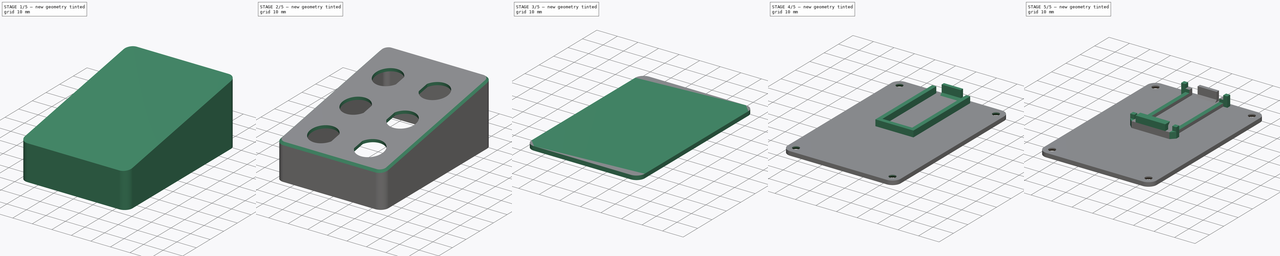
[diagram: build sequence overview — one tinted view per stage of 5, left to right]
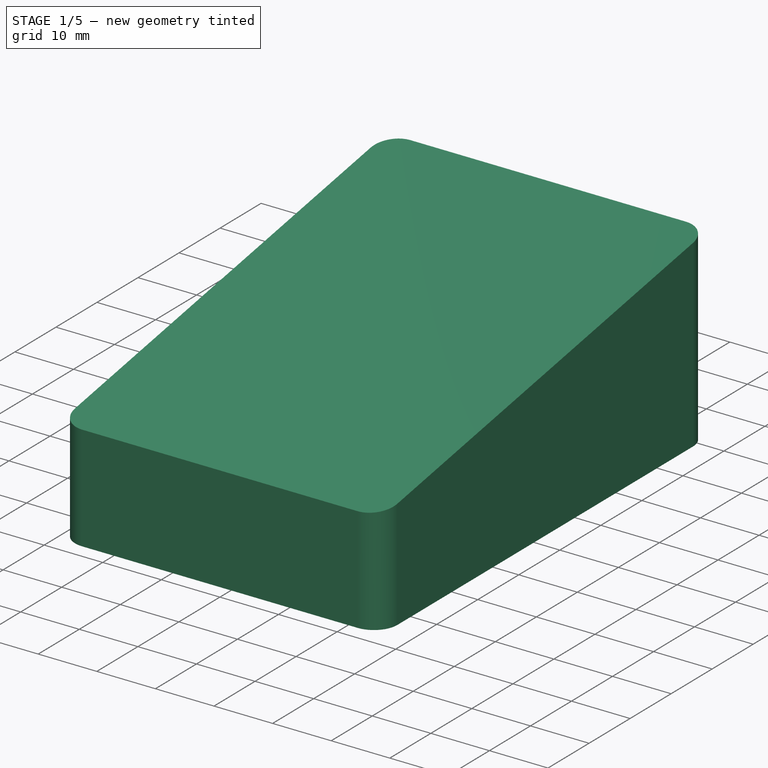
[diagram: stage 1 of 5 — iso view after this stage's code; geometry added in this stage tinted green]
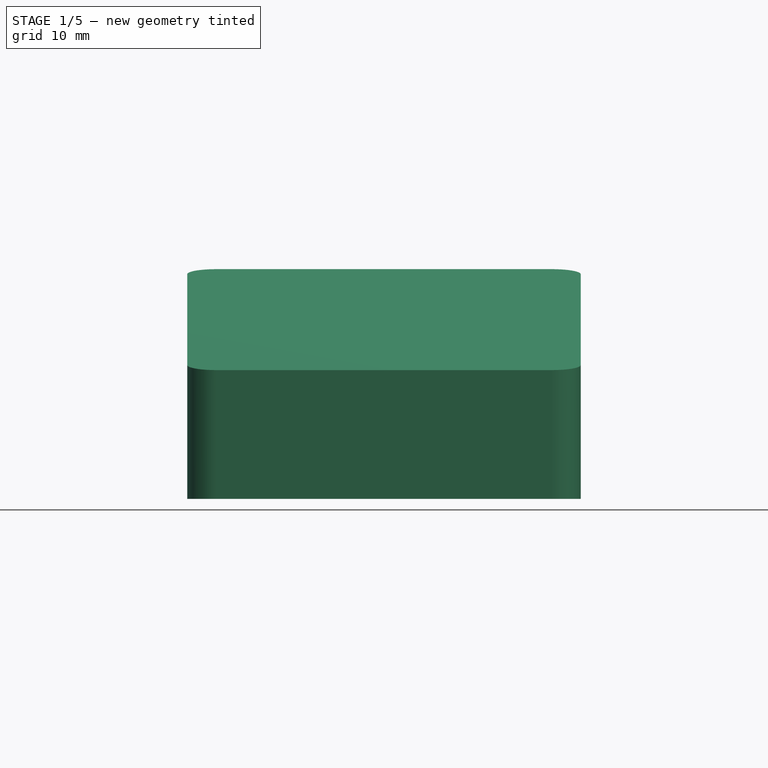
[diagram: stage 1 of 5 — front view after this stage's code; geometry added in this stage tinted green]
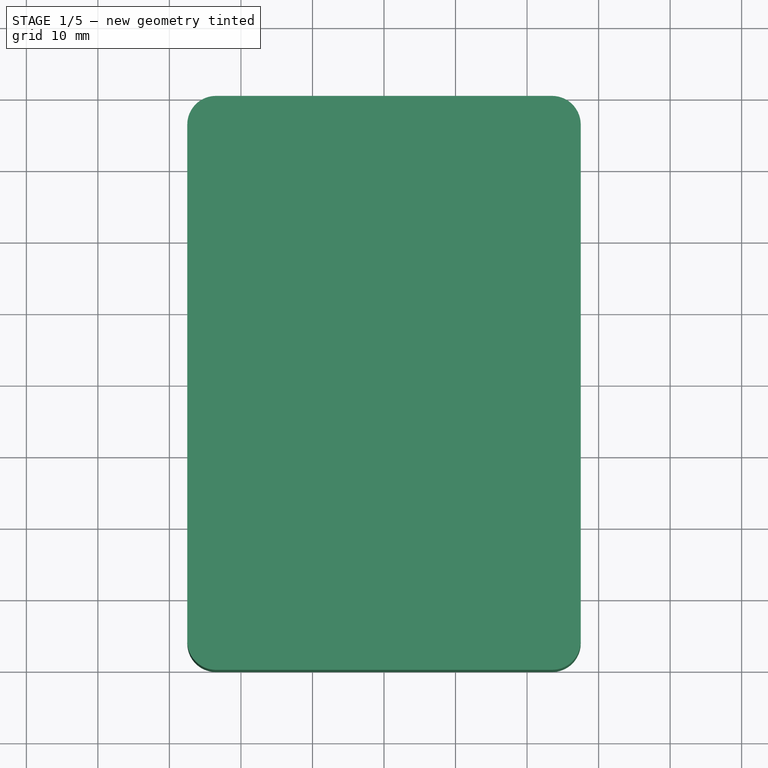
[diagram: stage 1 of 5 — top view after this stage's code; geometry added in this stage tinted green]
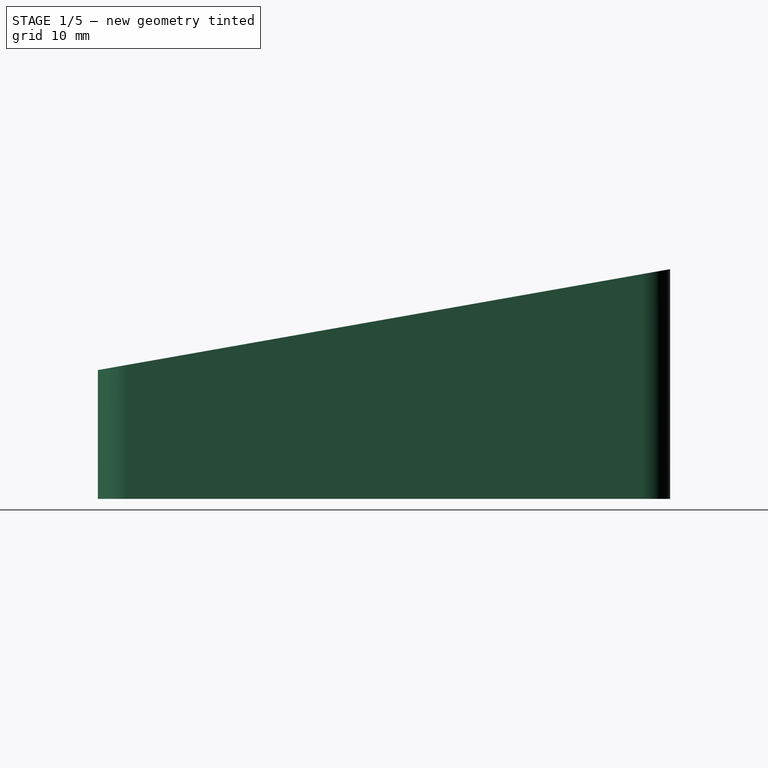
[diagram: stage 1 of 5 — right view after this stage's code; geometry added in this stage tinted green]
FCSTD DOCUMENT  (FreeCAD 1.0R39285 (Git))
Label: KEYPAD_Tucnak_Pro_micro_USB_C
License: All rights reserved
LicenseURL: http://en.wikipedia.org/wiki/All_rights_reserved
objects: Sketcher::SketchObject×17, PartDesign::Pad×11, PartDesign::Pocket×6, PartDesign::Chamfer×5, PartDesign::Fillet×2, PartDesign::Body×2, PartDesign::SubShapeBinder×1, PartDesign::Draft×1, PartDesign::Thickness×1, PartDesign::Mirrored×1, PartDesign::LinearPattern×1, PartDesign::MultiTransform×1
note: 121 computed .brp shape members not serialized (recipe doc carries the construction recipe); baked Part::Feature solids carry a one-line shape summary decoded from their .brp

FEATURE [Sketcher::SketchObject] Sketch
  ArcFitTolerance = 1e-06
  AttachmentSupport = -> [XY_Plane]
  FullyConstrained = true
  MakeInternals = false
  MapMode = 5
  sketch-geometry (5):
    g0: LineSegment StartX=-27.5 StartY=-40 StartZ=0 EndX=27.5 EndY=-40 EndZ=0
    g1: LineSegment StartX=27.5 StartY=-40 StartZ=0 EndX=27.5 EndY=40 EndZ=0
    g2: LineSegment StartX=-27.5 StartY=40 StartZ=0 EndX=-27.5 EndY=-40 EndZ=0
    g3: GeomPoint [constr] X=0 Y=0 Z=0
    g4: LineSegment StartX=-27.5 StartY=40 StartZ=0 EndX=27.5 EndY=40 EndZ=0
  constraints (12):
    c: Coincident(g0,g1)
    c: Coincident(g2,g0)
    c: Horizontal(g0)
    c: Vertical(g1)
    c: Vertical(g2)
    c: Symmetric(g1,g0,g3)
    c: Distance(g1,g2) = 55
    c: Distance(g0,g2) = 80
    c: Coincident(g3,g-1)
    c: Horizontal(g4)
    c: Coincident(g4,g1)
    c: Coincident(g4,g2)
FEATURE [PartDesign::Pad] Pad  label="80x55mm - 6 tlacitek"
  Direction = (0,0,1)
  Length = 18
  Length2 = 10
  Profile = -> Sketch
  ReferenceAxis = -> Sketch [N_Axis]
  Suppressed = false
  Type = 0
FEATURE [Sketcher::SketchObject] Sketch012
  ArcFitTolerance = 1e-06
  AttachmentSupport = -> [YZ_Plane001]
  FullyConstrained = true
  MakeInternals = false
  MapMode = 5
  Placement = pos=(0,0,0) rot=(0.57735,0.57735,0.57735;2.0944rad)
  sketch-geometry (4):
    g0: LineSegment StartX=2.9 StartY=3 StartZ=0 EndX=4.9 EndY=3 EndZ=0
    g1: LineSegment StartX=4.9 StartY=3 StartZ=0 EndX=6.0547 EndY=5 EndZ=0
    g2: LineSegment StartX=6.0547 StartY=5 StartZ=0 EndX=2.9 EndY=5 EndZ=0
    g3: LineSegment StartX=2.9 StartY=5 StartZ=0 EndX=2.9 EndY=3 EndZ=0
  constraints (10):
    c: Coincident(g0,g-3)
    c: Coincident(g0,g-4)
    c: Coincident(g1,g0)
    c: Coincident(g2,g1)
    c: Coincident(g3,g2)
    c: Coincident(g3,g0)
    c: Vertical(g3)
    c: Horizontal(g2)
    c: Angle(g2,g1) = 1.0472
    c: DistanceY(g3,g3) = 2
FEATURE [PartDesign::Draft] Draft  label="Draft - 10 st."
  Angle = 10
  Base = -> Pad [Face6]
  BaseFeature = -> Pad
  Refine = true
  SupportTransform = false
  Suppressed = false
FEATURE [PartDesign::Thickness] Thickness
  Base = -> Draft [Face5]
  BaseFeature = -> Draft
  Intersection = false
  Join = 0
  Mode = 0
  Refine = true
  Reversed = true
  SupportTransform = false
  Suppressed = false
  Value = 1.6
FEATURE [PartDesign::Fillet] Fillet
  Base = -> Thickness [Edge1,Edge2,Edge8,Edge5]
  BaseFeature = -> Thickness
  Radius = 4
  Refine = true
  SupportTransform = false
  Suppressed = false
  UseAllEdges = false
FEATURE [PartDesign::Fillet] Fillet001
  Base = -> Fillet [Edge35,Edge32,Edge29,Edge31]
  BaseFeature = -> Fillet
  Radius = 2.4
  Refine = true
  SupportTransform = false
  Suppressed = false
  UseAllEdges = false
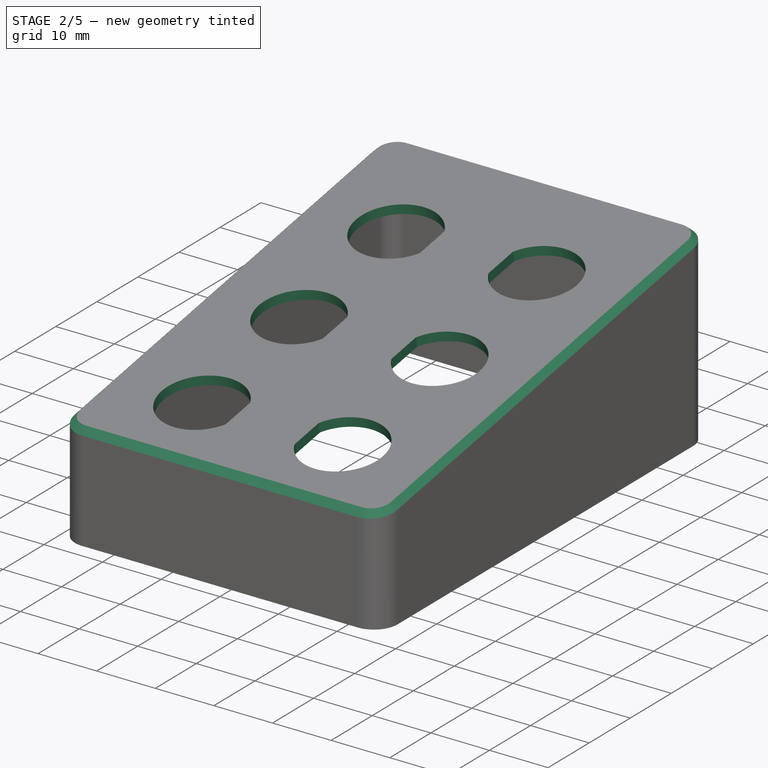
[diagram: stage 2 of 5 — iso view after this stage's code; geometry added in this stage tinted green]
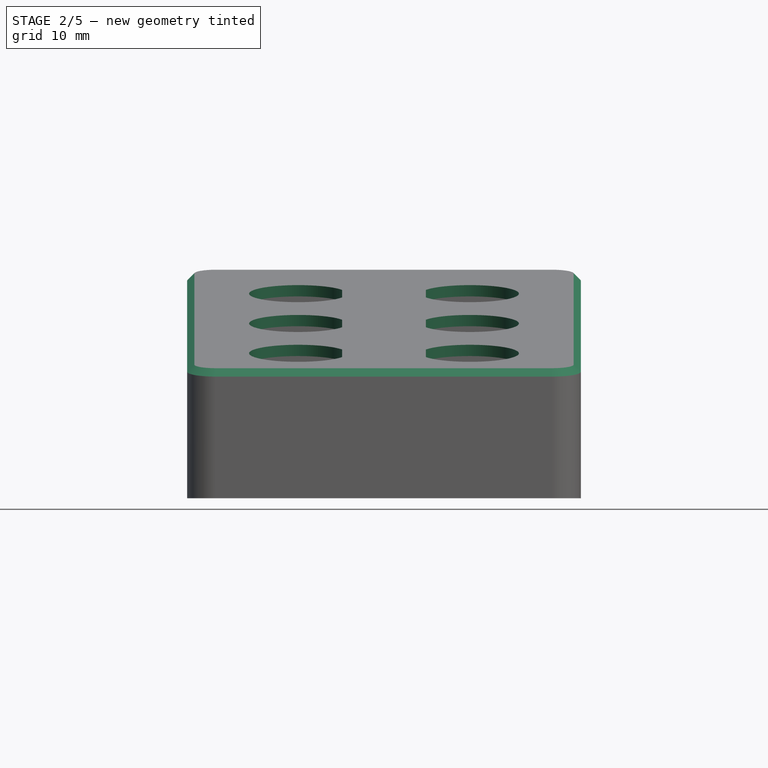
[diagram: stage 2 of 5 — front view after this stage's code; geometry added in this stage tinted green]
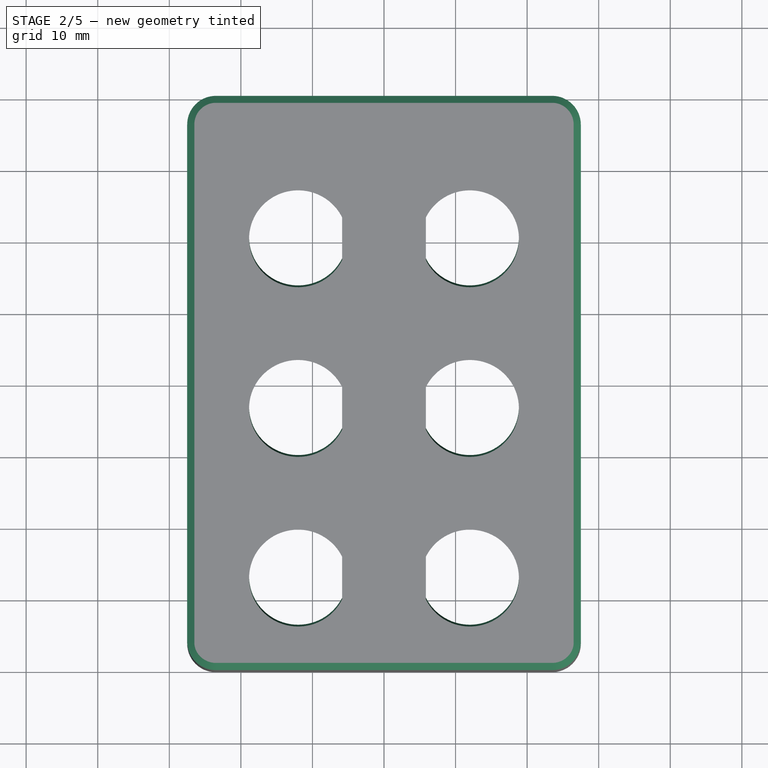
[diagram: stage 2 of 5 — top view after this stage's code; geometry added in this stage tinted green]
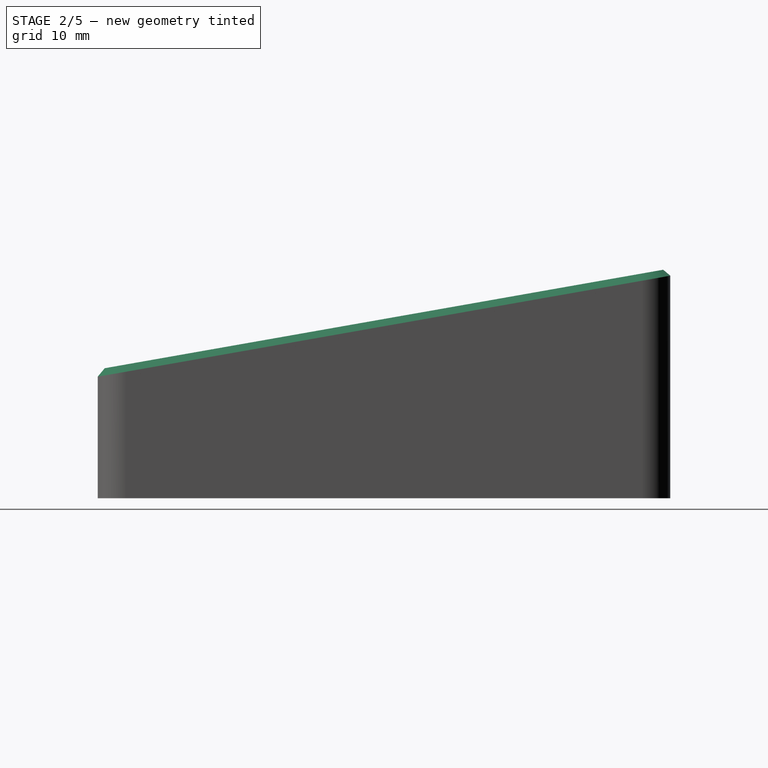
[diagram: stage 2 of 5 — right view after this stage's code; geometry added in this stage tinted green]
FEATURE [PartDesign::Chamfer] Chamfer
  Angle = 45
  Base = -> Fillet001 [Edge43,Edge41]
  BaseFeature = -> Fillet001
  ChamferType = 0
  FlipDirection = false
  Refine = true
  Size = 1
  Size2 = 1
  SupportTransform = false
  Suppressed = false
  UseAllEdges = false
FEATURE [PartDesign::Chamfer] Chamfer005
  Angle = 45
  Base = -> Chamfer [Edge48,Edge46]
  BaseFeature = -> Chamfer
  ChamferType = 0
  FlipDirection = false
  Refine = true
  Size = 1.5
  Size2 = 1
  SupportTransform = false
  Suppressed = false
  UseAllEdges = false
FEATURE [Sketcher::SketchObject] Sketch018
  ArcFitTolerance = 1e-06
  AttachmentSupport = -> [Chamfer005]
  ExternalGeometry = -> [Chamfer005]
  FullyConstrained = true
  MakeInternals = false
  MapMode = 5
  Placement = pos=(0,-4.28433,24.2976) rot=(1,0,0;0.174533rad)
  sketch-geometry (3):
    g0: ArcOfCircle CenterX=12 CenterY=-23.2666 CenterZ=0 NormalX=0 NormalY=0 NormalZ=1 AngleXU=0 Radius=6.85 StartAngle=3.59762 EndAngle=8.96875
    g1: LineSegment StartX=5.85 StartY=-20.25 StartZ=0 EndX=5.85 EndY=-26.2833 EndZ=0
    g2: GeomPoint [constr] X=18.85 Y=-23.2666 Z=0
  constraints (9):
    c: Vertical(g1)
    c: PointOnObject(g2,g0)
    c: Horizontal(g2,g0)
    c: Diameter(g0) = 13.7
    c: Coincident(g0,g1)
    c: Coincident(g1,g0)
    c: Distance(g2,g1) = 13
    c: Distance(g0,g-2) = 12
    c: Distance(g0,g-3) = 12
FEATURE [PartDesign::Pocket] Pocket
  BaseFeature = -> Chamfer005
  Direction = (0,0.173648,-0.984808)
  Length = 5
  Length2 = 5
  Profile = -> Sketch018
  ReferenceAxis = -> Sketch018 [N_Axis]
  Refine = true
  Suppressed = false
  Type = 0
FEATURE [PartDesign::Mirrored] Mirrored
  MirrorPlane = -> Sketch018 [V_Axis]
  Refine = true
  Suppressed = false
  TransformMode = 0
FEATURE [PartDesign::LinearPattern] LinearPattern
  Direction = -> Pocket [Edge56]
  Length = 48
  Mode = 1
  Occurrences = 3
  Offset = 24
  Refine = true
  Suppressed = false
  TransformMode = 0
FEATURE [PartDesign::MultiTransform] MultiTransform
  BaseFeature = -> Pocket
  Originals = -> [Pocket]
  Refine = true
  Suppressed = false
  TransformMode = 0
  Transformations = -> [Mirrored,LinearPattern]
FEATURE [Sketcher::SketchObject] Sketch019
  ArcFitTolerance = 1e-06
  AttachmentSupport = -> [MultiTransform]
  FullyConstrained = true
  MakeInternals = false
  MapMode = 5
  Placement = pos=(0,40,0) rot=(0,0.707107,0.707107;3.14159rad)
  sketch-geometry (4):
    g0: LineSegment StartX=-4.75 StartY=0 StartZ=0 EndX=4.75 EndY=0 EndZ=0
    g1: LineSegment StartX=4.75 StartY=0 StartZ=0 EndX=4.75 EndY=8 EndZ=0
    g2: LineSegment StartX=4.75 StartY=8 StartZ=0 EndX=-4.75 EndY=8 EndZ=0
    g3: LineSegment StartX=-4.75 StartY=8 StartZ=0 EndX=-4.75 EndY=0 EndZ=0
  constraints (11):
    c: Coincident(g0,g1)
    c: Coincident(g1,g2)
    c: Coincident(g2,g3)
    c: Coincident(g3,g0)
    c: Horizontal(g0)
    c: Vertical(g1)
    c: Vertical(g3)
    c: PointOnObject(g0,g-1)
    c: Symmetric(g2,g1,g-2)
    c: DistanceX(g2,g2) = 9.5
    c: DistanceY(g1,g1) = 8
FEATURE [PartDesign::Pocket] Pocket011
  BaseFeature = -> MultiTransform
  Direction = (0,-1,2e-16)
  Length = 5
  Length2 = 5
  Profile = -> Sketch019
  ReferenceAxis = -> Sketch019 [N_Axis]
  Refine = true
  Suppressed = false
  Type = 0
FEATURE [Sketcher::SketchObject] Sketch020
  ArcFitTolerance = 1e-06
  AttachmentSupport = -> [Pocket011]
  ExternalGeometry = -> [Pocket011]
  FullyConstrained = true
  MakeInternals = false
  MapMode = 5
  Placement = pos=(4.75,0,0) rot=(0.57735,-0.57735,-0.57735;2.0944rad)
  sketch-geometry (3):
    g0: LineSegment StartX=-38.4 StartY=8 StartZ=0 EndX=-35.4 EndY=8 EndZ=0
    g1: LineSegment StartX=-35.4 StartY=8 StartZ=0 EndX=-38.4 EndY=12.2844 EndZ=0
    g2: LineSegment StartX=-38.4 StartY=12.2844 StartZ=0 EndX=-38.4 EndY=8 EndZ=0
  constraints (8):
    c: Coincident(g-3,g0)
    c: Horizontal(g0)
    c: Coincident(g0,g1)
    c: Coincident(g1,g2)
    c: Coincident(g2,g0)
    c: Vertical(g2)
    c: DistanceX(g0,g0) = 3
    c: Angle(g1,g-4) = 0.785398
FEATURE [PartDesign::Pad] Pad008
  BaseFeature = -> Pocket011
  Direction = (-1,0,0)
  Length = 8
  Length2 = 10
  Profile = -> Sketch020
  ReferenceAxis = -> Sketch020 [N_Axis]
  Refine = true
  Suppressed = false
  Type = 3
  UpToFace = -> Pocket011 [Face22]
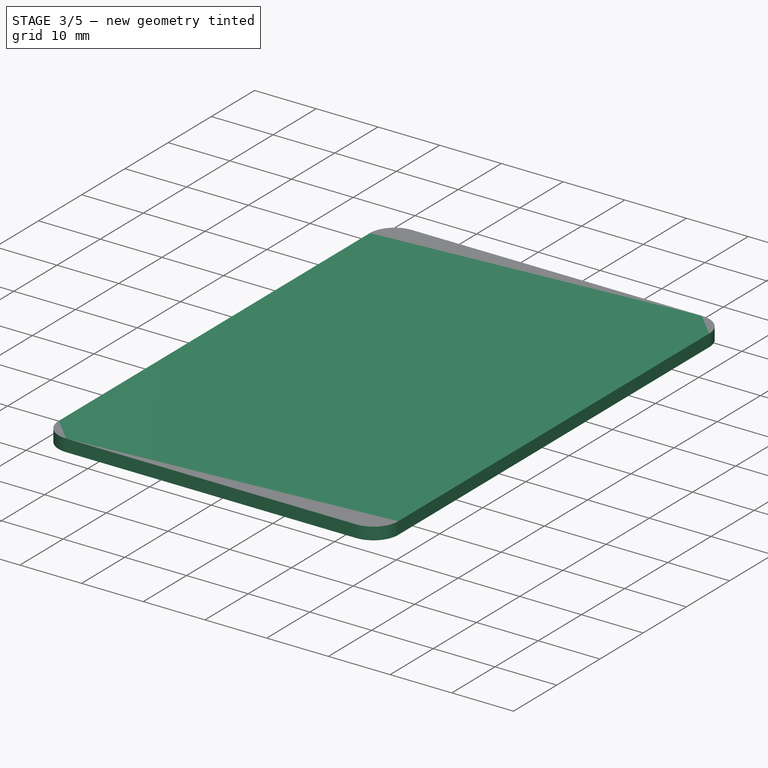
[diagram: stage 3 of 5 — iso view after this stage's code; geometry added in this stage tinted green]
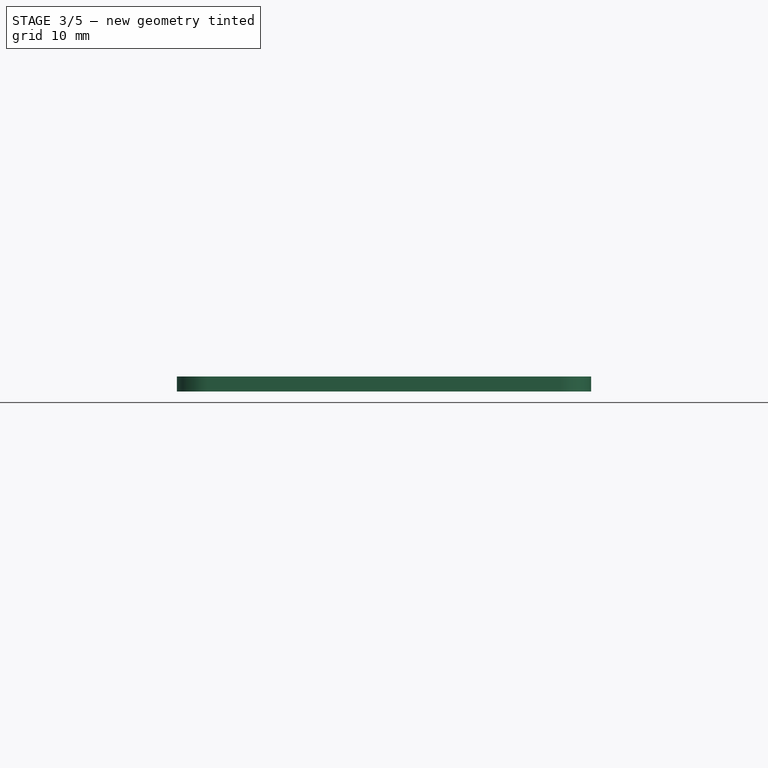
[diagram: stage 3 of 5 — front view after this stage's code; geometry added in this stage tinted green]
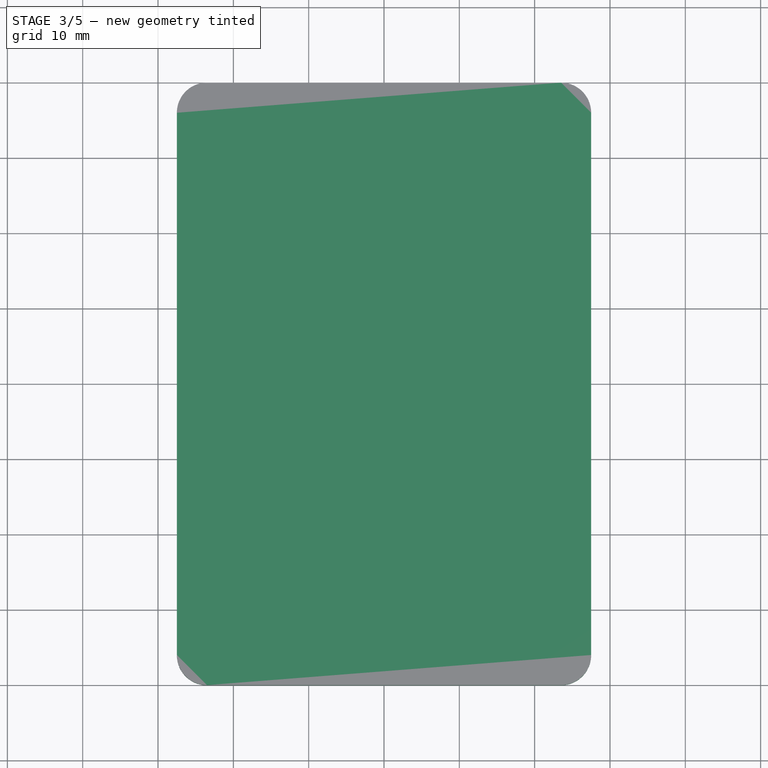
[diagram: stage 3 of 5 — top view after this stage's code; geometry added in this stage tinted green]
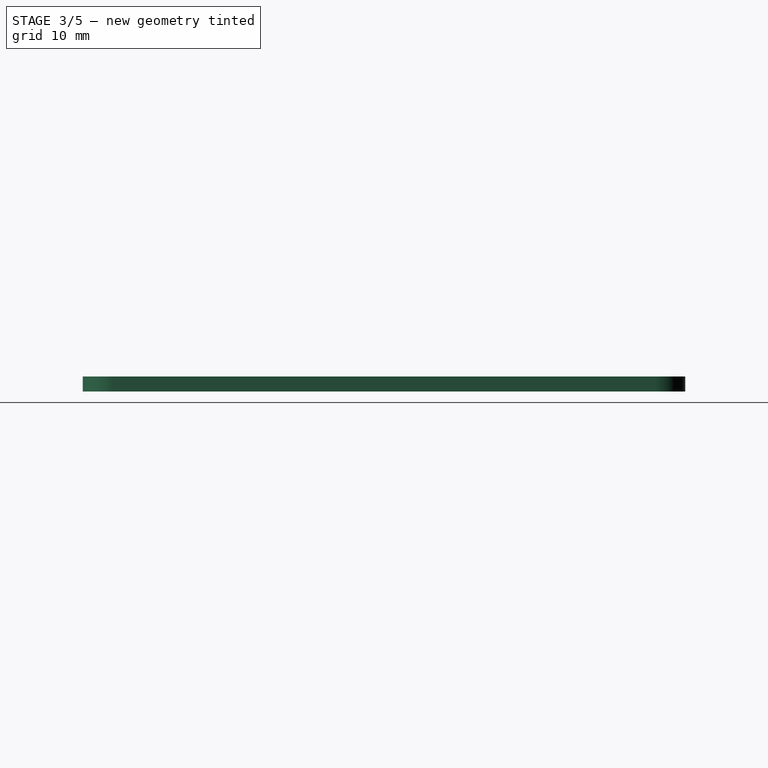
[diagram: stage 3 of 5 — right view after this stage's code; geometry added in this stage tinted green]
FEATURE [PartDesign::SubShapeBinder] Binder
  BindCopyOnChange = 0
  BindMode = 0
  ClaimChildren = false
  Context = -> Body001 [Binder.]
  Fuse = false
  MakeFace = true
  OffsetFill = false
  OffsetIntersection = false
  OffsetJoinType = 0
  OffsetOpenResult = false
  PartialLoad = false
  Relative = true
  Support = -> [Body[Pocket001.,Pocket001.]]
  _Version = 2
FEATURE [Sketcher::SketchObject] Sketch004
  ArcFitTolerance = 1e-06
  AttachmentSupport = -> [Binder]
  ExternalGeometry = -> [Binder]
  FullyConstrained = true
  MakeInternals = false
  MapMode = 5
  Placement = pos=(0,0,0) rot=(1,0,0;3.14159rad)
  sketch-geometry (10):
    g0: LineSegment StartX=-27.5 StartY=36 StartZ=0 EndX=-27.5 EndY=-36 EndZ=0
    g1: LineSegment StartX=-23.5 StartY=-40 StartZ=0 EndX=23.5 EndY=-40 EndZ=0
    g2: LineSegment StartX=27.5 StartY=-36 StartZ=0 EndX=27.5 EndY=36 EndZ=0
    g3: LineSegment StartX=23.5 StartY=40 StartZ=0 EndX=-23.5 EndY=40 EndZ=0
    g4: ArcOfCircle CenterX=-23.5 CenterY=36 CenterZ=0 NormalX=0 NormalY=0 NormalZ=1 AngleXU=0 Radius=4 StartAngle=1.5708 EndAngle=3.14159
    g5: ArcOfCircle CenterX=-23.5 CenterY=-36 CenterZ=0 NormalX=0 NormalY=0 NormalZ=1 AngleXU=0 Radius=4 StartAngle=3.14159 EndAngle=4.71239
    g6: ArcOfCircle CenterX=23.5 CenterY=-36 CenterZ=0 NormalX=0 NormalY=0 NormalZ=1 AngleXU=0 Radius=4 StartAngle=4.71239 EndAngle=6.28319
    g7: ArcOfCircle CenterX=23.5 CenterY=36 CenterZ=0 NormalX=0 NormalY=0 NormalZ=1 AngleXU=0 Radius=4 StartAngle=0 EndAngle=1.5708
    g8: GeomPoint [constr] X=-27.5 Y=40 Z=0
    g9: GeomPoint [constr] X=27.5 Y=-40 Z=0
  constraints (22):
    c: Tangent(g0,g4) = -1.5708
    c: Tangent(g0,g5) = -1.5708
    c: Tangent(g1,g5) = -1.5708
    c: Tangent(g1,g6) = -1.5708
    c: Tangent(g2,g6) = -1.5708
    c: Tangent(g2,g7) = -1.5708
    c: Tangent(g3,g7) = -1.5708
    c: Tangent(g3,g4) = -1.5708
    c: Vertical(g0)
    c: Vertical(g2)
    c: Horizontal(g1)
    c: Horizontal(g3)
    c: Equal(g4,g5)
    c: Equal(g5,g6)
    c: Equal(g6,g7)
    c: PointOnObject(g8,g0)
    c: PointOnObject(g8,g3)
    c: PointOnObject(g9,g1)
    c: PointOnObject(g9,g2)
    c: Equal(g4,g-3)
    c: Coincident(g4,g-3)
    c: Coincident(g6,g-4)
FEATURE [PartDesign::Pad] Pad002
  Direction = (0,0,-1)
  Length = 2
  Length2 = 10
  Profile = -> Sketch004
  ReferenceAxis = -> Sketch004 [N_Axis]
  Suppressed = false
  Type = 0
FEATURE [Sketcher::SketchObject] Sketch021
  ArcFitTolerance = 1e-06
  AttachmentSupport = -> [Pad008]
  ExternalGeometry = -> [Pad008]
  FullyConstrained = true
  MakeInternals = false
  MapMode = 5
  Placement = pos=(0,0,0) rot=(1,0,0;3.14159rad)
  sketch-geometry (24):
    g0: ArcOfCircle CenterX=-23.5 CenterY=36 CenterZ=0 NormalX=0 NormalY=0 NormalZ=1 AngleXU=0 Radius=2.4 StartAngle=1.5708 EndAngle=3.14159
    g1: ArcOfCircle CenterX=-23.5 CenterY=36 CenterZ=0 NormalX=0 NormalY=0 NormalZ=1 AngleXU=0 Radius=4 StartAngle=4.71239 EndAngle=6.28319
    g2: LineSegment StartX=-25.9 StartY=36 StartZ=0 EndX=-25.9 EndY=32 EndZ=0
    g3: LineSegment StartX=-23.5 StartY=38.4 StartZ=0 EndX=-19.5 EndY=38.4 EndZ=0
    g4: LineSegment StartX=-25.9 StartY=32 StartZ=0 EndX=-23.5 EndY=32 EndZ=0
    g5: LineSegment StartX=-19.5 StartY=38.4 StartZ=0 EndX=-19.5 EndY=36 EndZ=0
    g6: ArcOfCircle CenterX=23.5 CenterY=-36 CenterZ=0 NormalX=0 NormalY=0 NormalZ=1 AngleXU=0 Radius=4 StartAngle=1.5708 EndAngle=3.14159
    g7: LineSegment StartX=23.5 StartY=-38.4 StartZ=0 EndX=19.5 EndY=-38.4 EndZ=0
    g8: LineSegment StartX=19.5 StartY=-38.4 StartZ=0 EndX=19.5 EndY=-36 EndZ=0
    g9: LineSegment StartX=25.9 StartY=-36 StartZ=0 EndX=25.9 EndY=-32 EndZ=0
    g10: LineSegment StartX=25.9 StartY=-32 StartZ=0 EndX=23.5 EndY=-32 EndZ=0
    g11: ArcOfCircle CenterX=23.5 CenterY=-36 CenterZ=0 NormalX=0 NormalY=0 NormalZ=1 AngleXU=0 Radius=2.4 StartAngle=4.71239 EndAngle=6.28319
    g12: ArcOfCircle CenterX=-23.5 CenterY=-36 CenterZ=0 NormalX=0 NormalY=0 NormalZ=1 AngleXU=0 Radius=2.4 StartAngle=3.14159 EndAngle=4.71239
    g13: ArcOfCircle CenterX=-23.5 CenterY=-36 CenterZ=0 NormalX=0 NormalY=0 NormalZ=1 AngleXU=0 Radius=4 StartAngle=8e-16 EndAngle=1.5708
    g14: LineSegment StartX=-25.9 StartY=-36 StartZ=0 EndX=-25.9 EndY=-32 EndZ=0
    g15: LineSegment StartX=-25.9 StartY=-32 StartZ=0 EndX=-23.5 EndY=-32 EndZ=0
    g16: LineSegment StartX=-23.5 StartY=-38.4 StartZ=0 EndX=-19.5 EndY=-38.4 EndZ=0
    g17: LineSegment StartX=-19.5 StartY=-38.4 StartZ=0 EndX=-19.5 EndY=-36 EndZ=0
    g18: ArcOfCircle CenterX=23.5 CenterY=36 CenterZ=0 NormalX=0 NormalY=0 NormalZ=1 AngleXU=0 Radius=2.4 StartAngle=1.5e-15 EndAngle=1.5708
    g19: LineSegment StartX=23.5 StartY=38.4 StartZ=0 EndX=19.5 EndY=38.4 EndZ=0
    g20: LineSegment StartX=19.5 StartY=38.4 StartZ=0 EndX=19.5 EndY=36 EndZ=0
    g21: LineSegment StartX=25.9 StartY=36 StartZ=0 EndX=25.9 EndY=32 EndZ=0
    g22: LineSegment StartX=25.9 StartY=32 StartZ=0 EndX=23.5 EndY=32 EndZ=0
    g23: ArcOfCircle CenterX=23.5 CenterY=36 CenterZ=0 NormalX=0 NormalY=0 NormalZ=1 AngleXU=0 Radius=4 StartAngle=3.14159 EndAngle=4.71239
  constraints (60):
    c: Coincident(g0,g-3)
    c: Coincident(g1,g0)
    c: Coincident(g2,g-3)
    c: Vertical(g2)
    c: Coincident(g3,g-3)
    c: Horizontal(g3)
    c: Coincident(g4,g2)
    c: Coincident(g5,g3)
    c: Vertical(g5)
    c: Horizontal(g4)
    c: Coincident(g0,g2)
    c: Tangent(g1,g5) = 1.5708
    c: Tangent(g1,g4) = -1.5708
    c: Angle(g0) = 1.5708
    c: Radius(g1) = 4
    c: Coincident(g6,g-4)
    c: Equal(g6,g1)
    c: Coincident(g7,g-4)
    c: Coincident(g8,g7)
    c: Coincident(g9,g-4)
    c: Coincident(g10,g9)
    c: Vertical(g9)
    c: Horizontal(g7)
    c: Vertical(g8)
    c: Horizontal(g10)
    c: Tangent(g6,g8) = 1.5708
    c: Tangent(g6,g10) = -1.5708
    c: Coincident(g11,g6)
    c: Coincident(g11,g7)
    c: Angle(g11) = 1.5708
    c: Coincident(g12,g-6)
    c: Coincident(g13,g12)
    c: Equal(g1,g13)
    c: Coincident(g14,g-6)
    c: Coincident(g15,g14)
    c: Coincident(g16,g-6)
    c: Coincident(g17,g16)
    c: Horizontal(g16)
    c: Vertical(g14)
    c: Horizontal(g15)
    c: Vertical(g17)
    c: Coincident(g12,g16)
    c: Tangent(g13,g15) = 1.5708
    c: Tangent(g13,g17) = -1.5708
    c: Coincident(g18,g-5)
    c: Coincident(g18,g-5)
    c: Coincident(g19,g18)
    c: Coincident(g20,g19)
    c: Coincident(g21,g18)
    c: Coincident(g22,g21)
    c: Horizontal(g19)
    c: Vertical(g20)
    c: Vertical(g21)
    c: Horizontal(g22)
    c: Coincident(g23,g18)
    c: Equal(g1,g23)
    c: Tangent(g23,g22) = 1.5708
    c: Tangent(g23,g20) = -1.5708
    c: Angle(g12) = 1.5708
    c: Angle(g18) = 1.5708
FEATURE [PartDesign::Pad] Pad009
  BaseFeature = -> Pad008
  Direction = (0,0,-1)
  Length = 15
  Length2 = 10
  Profile = -> Sketch021
  ReferenceAxis = -> Sketch021 [N_Axis]
  Refine = true
  Reversed = true
  Suppressed = false
  Type = 0
FEATURE [PartDesign::Chamfer] Chamfer006
  Angle = 45
  Base = -> Pad009 [Edge14,Edge127,Edge22,Edge118]
  BaseFeature = -> Pad009
  ChamferType = 0
  FlipDirection = false
  Refine = true
  Size = 3.9
  Size2 = 1
  SupportTransform = false
  Suppressed = false
  UseAllEdges = false
FEATURE [Sketcher::SketchObject] Sketch022
  ArcFitTolerance = 1e-06
  AttachmentSupport = -> [Chamfer006]
  ExternalGeometry = -> [Chamfer006]
  FullyConstrained = true
  MakeInternals = false
  MapMode = 5
  Placement = pos=(0,0,0) rot=(1,0,0;3.14159rad)
  sketch-geometry (4):
    g0: Circle CenterX=-23.5 CenterY=36 CenterZ=0 NormalX=0 NormalY=0 NormalZ=1 AngleXU=0 Radius=2
    g1: Circle CenterX=23.5 CenterY=-36 CenterZ=0 NormalX=0 NormalY=0 NormalZ=1 AngleXU=0 Radius=2
    g2: Circle CenterX=-23.5 CenterY=-36 CenterZ=0 NormalX=0 NormalY=0 NormalZ=1 AngleXU=0 Radius=2
    g3: Circle CenterX=23.5 CenterY=36 CenterZ=0 NormalX=0 NormalY=0 NormalZ=1 AngleXU=0 Radius=2
  constraints (8):
    c: Coincident(g0,g-3)
    c: Coincident(g1,g-4)
    c: Equal(g1,g0)
    c: Diameter(g0) = 4
    c: Coincident(g2,g-6)
    c: Coincident(g3,g-5)
    c: Equal(g0,g3)
    c: Equal(g3,g2)
FEATURE [PartDesign::Pocket] Pocket012
  BaseFeature = -> Chamfer006
  Direction = (0,0,1)
  Length = 5
  Length2 = 5
  Profile = -> Sketch022
  ReferenceAxis = -> Sketch022 [N_Axis]
  Refine = true
  Suppressed = false
  Type = 0
FEATURE [Sketcher::SketchObject] Sketch023
  ArcFitTolerance = 1e-06
  AttachmentSupport = -> [Pocket012]
  ExternalGeometry = -> [Pocket012]
  FullyConstrained = true
  MakeInternals = false
  MapMode = 5
  Placement = pos=(0,0,5) rot=(1,0,0;3.14159rad)
  sketch-geometry (4):
    g0: Circle CenterX=23.5 CenterY=-36 CenterZ=0 NormalX=0 NormalY=0 NormalZ=1 AngleXU=0 Radius=1.6
    g1: Circle CenterX=-23.5 CenterY=36 CenterZ=0 NormalX=0 NormalY=0 NormalZ=1 AngleXU=0 Radius=1.6
    g2: Circle CenterX=-23.5 CenterY=-36 CenterZ=0 NormalX=0 NormalY=0 NormalZ=1 AngleXU=0 Radius=1.6
    g3: Circle CenterX=23.5 CenterY=36 CenterZ=0 NormalX=0 NormalY=0 NormalZ=1 AngleXU=0 Radius=1.6
  constraints (8):
    c: Coincident(g0,g-4)
    c: Coincident(g1,g-3)
    c: Equal(g0,g1)
    c: Diameter(g1) = 3.2
    c: Coincident(g2,g-6)
    c: Coincident(g3,g-5)
    c: Equal(g3,g1)
    c: Equal(g2,g0)
FEATURE [PartDesign::Pocket] Pocket013
  BaseFeature = -> Pocket012
  Direction = (0,0,1)
  Length = 11
  Length2 = 5
  Profile = -> Sketch023
  ReferenceAxis = -> Sketch023 [N_Axis]
  Refine = true
  Suppressed = false
  Type = 0
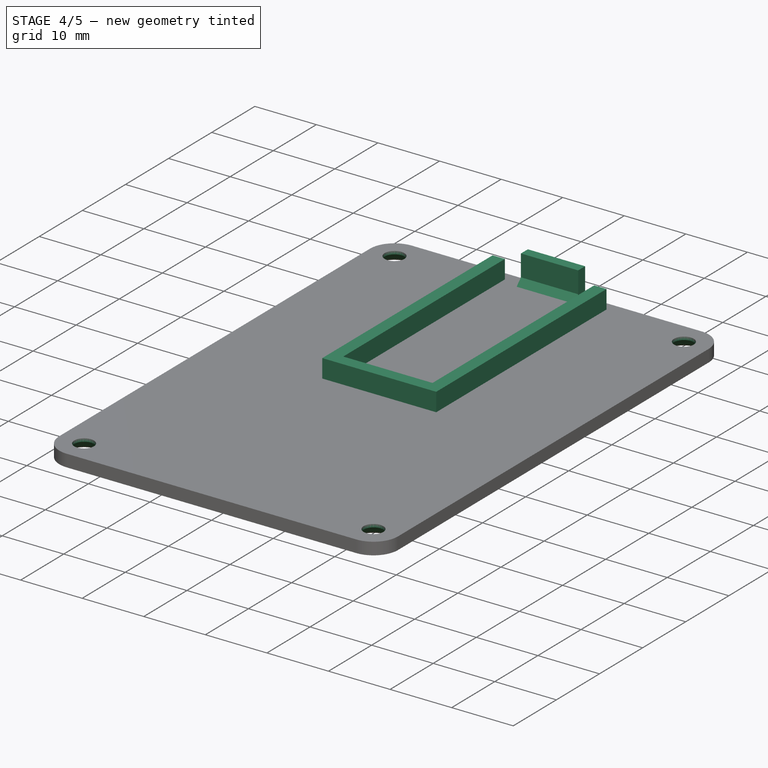
[diagram: stage 4 of 5 — iso view after this stage's code; geometry added in this stage tinted green]
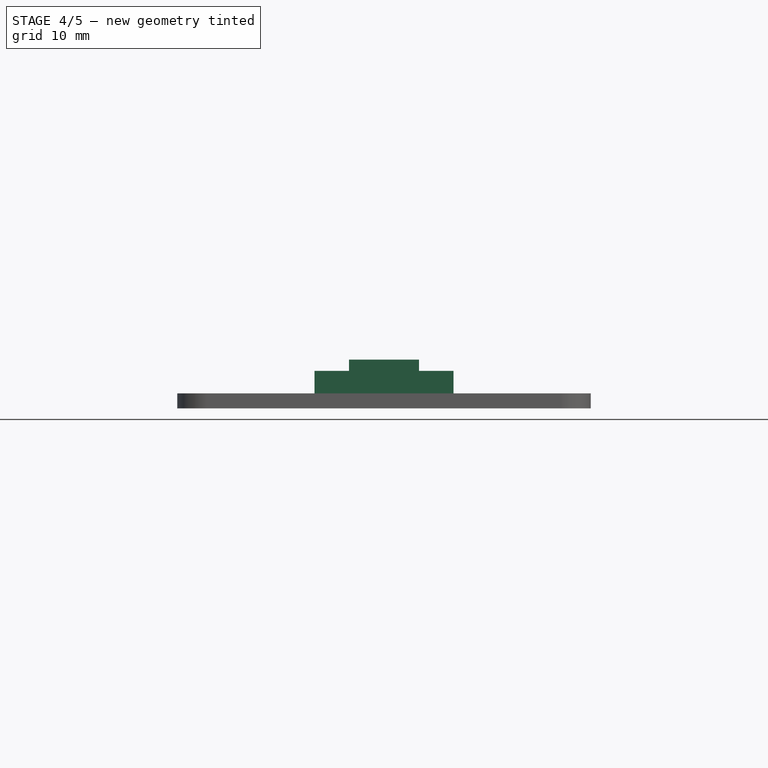
[diagram: stage 4 of 5 — front view after this stage's code; geometry added in this stage tinted green]
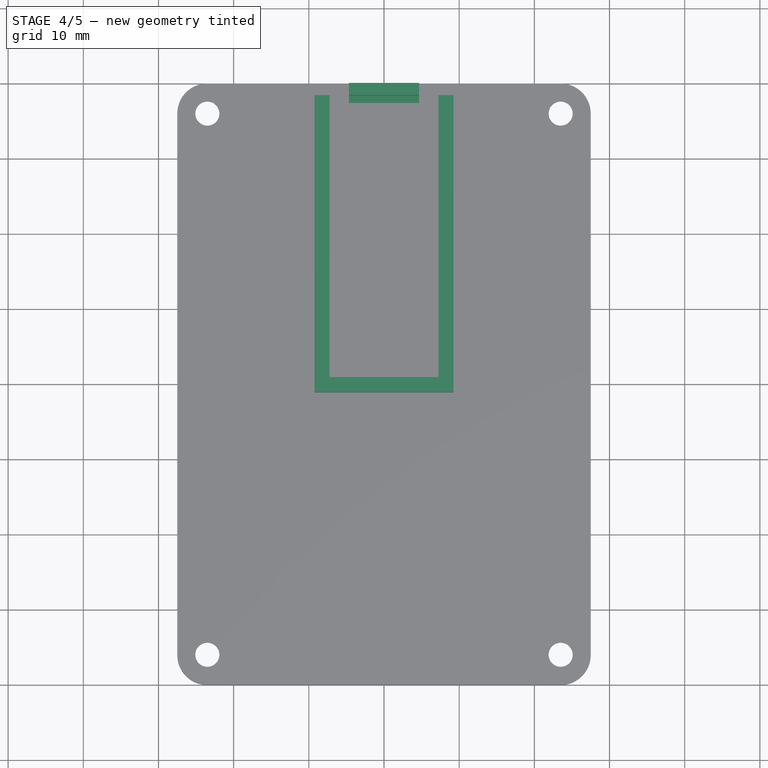
[diagram: stage 4 of 5 — top view after this stage's code; geometry added in this stage tinted green]
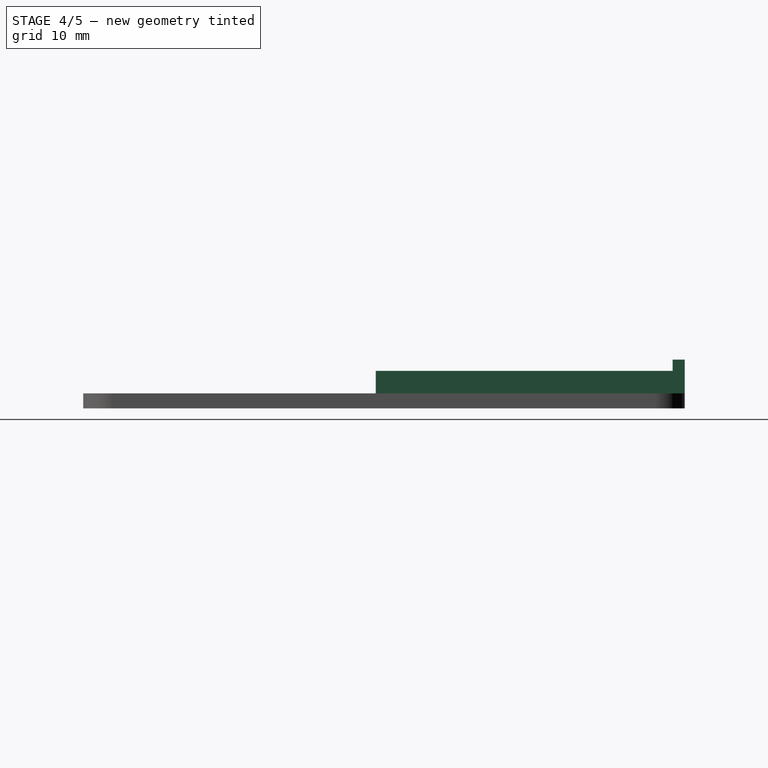
[diagram: stage 4 of 5 — right view after this stage's code; geometry added in this stage tinted green]
FEATURE [Sketcher::SketchObject] Sketch006
  ArcFitTolerance = 1e-06
  ExternalGeometry = -> [Binder]
  FullyConstrained = true
  MakeInternals = false
  MapMode = 5
  sketch-geometry (8):
    g0: LineSegment StartX=-7.25 StartY=38.4 StartZ=0 EndX=-7.25 EndY=0.9 EndZ=0
    g1: LineSegment StartX=-7.25 StartY=0.9 StartZ=0 EndX=7.25 EndY=0.9 EndZ=0
    g2: LineSegment StartX=7.25 StartY=0.9 StartZ=0 EndX=7.25 EndY=38.4 EndZ=0
    g3: LineSegment StartX=-9.25 StartY=38.4 StartZ=0 EndX=-9.25 EndY=-1.1 EndZ=0
    g4: LineSegment StartX=-9.25 StartY=-1.1 StartZ=0 EndX=9.25 EndY=-1.1 EndZ=0
    g5: LineSegment StartX=9.25 StartY=-1.1 StartZ=0 EndX=9.25 EndY=38.4 EndZ=0
    g6: LineSegment StartX=-9.25 StartY=38.4 StartZ=0 EndX=-7.25 EndY=38.4 EndZ=0
    g7: LineSegment StartX=7.25 StartY=38.4 StartZ=0 EndX=9.25 EndY=38.4 EndZ=0
  constraints (21):
    c: Coincident(g0,g1)
    c: Coincident(g1,g2)
    c: PointOnObject(g0,g-3)
    c: Symmetric(g0,g1,g-2)
    c: Coincident(g3,g4)
    c: Coincident(g4,g5)
    c: Vertical(g3)
    c: Vertical(g5)
    c: PointOnObject(g3,g-3)
    c: Symmetric(g3,g4,g-2)
    c: Symmetric(g0,g2,g-2)
    c: PointOnObject(g5,g-3)
    c: Coincident(g6,g3)
    c: Coincident(g6,g0)
    c: Coincident(g7,g2)
    c: Coincident(g7,g5)
    c: Vertical(g2)
    c: Distance(g3,g0) = 2
    c: DistanceX(g4,g4) = 18.5
    c: DistanceY(g4,g1) = 2
    c: DistanceY(g0,g0) = 37.5
FEATURE [PartDesign::Pad] Pad003  label="nano C"
  BaseFeature = -> Pad002
  Direction = (0,0,1)
  Length = 3
  Length2 = 10
  Profile = -> Sketch006
  ReferenceAxis = -> Sketch006 [N_Axis]
  Suppressed = false
  Type = 0
FEATURE [PartDesign::Body] Body  label="krabička"
  AllowCompound = false
  Group = -> [Sketch,Pad,Draft,Thickness,Fillet,Fillet001,Chamfer,Chamfer005,Sketch018,Pocket,MultiTransform,Mirrored,LinearPattern,Sketch019,Pocket011,Sketch020,Pad008,Sketch021,Pad009,Chamfer006,Sketch022,Pocket012,Sketch023,Pocket013]
  Origin = -> Origin
  Tip = -> Pocket013
FEATURE [Sketcher::SketchObject] Sketch009
  ArcFitTolerance = 1e-06
  FullyConstrained = true
  MakeInternals = false
  MapMode = 5
  sketch-geometry (4):
    g0: LineSegment StartX=-4.65 StartY=40 StartZ=0 EndX=-4.65 EndY=38.4 EndZ=0
    g1: LineSegment StartX=-4.65 StartY=38.4 StartZ=0 EndX=4.65 EndY=38.4 EndZ=0
    g2: LineSegment StartX=4.65 StartY=38.4 StartZ=0 EndX=4.65 EndY=40 EndZ=0
    g3: LineSegment StartX=4.65 StartY=40 StartZ=0 EndX=-4.65 EndY=40 EndZ=0
  constraints (11):
    c: Coincident(g0,g1)
    c: Coincident(g1,g2)
    c: Coincident(g2,g3)
    c: Coincident(g3,g0)
    c: Vertical(g0)
    c: Vertical(g2)
    c: Horizontal(g3)
    c: PointOnObject(g0,g-3)
    c: Symmetric(g0,g1,g-2)
    c: DistanceX(g3,g3) = 9.3
    c: Horizontal(g0,g-4)
FEATURE [PartDesign::Pad] Pad005
  BaseFeature = -> Pad003
  Direction = (0,0,1)
  Length = 4.5
  Length2 = 10
  Profile = -> Sketch009
  ReferenceAxis = -> Sketch009 [N_Axis]
  Suppressed = false
  Type = 0
FEATURE [PartDesign::Pad] Pad007
  BaseFeature = -> Pad005
  Direction = (1,0,0)
  Length = 8
  Length2 = 10
  Midplane = true
  Profile = -> Sketch012
  ReferenceAxis = -> Sketch012 [N_Axis]
  Suppressed = false
  Type = 0
FEATURE [Sketcher::SketchObject] Sketch024
  ArcFitTolerance = 1e-06
  ExternalGeometry = -> [Pad007]
  FullyConstrained = true
  MakeInternals = false
  MapMode = 5
  sketch-geometry (4):
    g0: Circle CenterX=23.5 CenterY=36 CenterZ=0 NormalX=0 NormalY=0 NormalZ=1 AngleXU=0 Radius=1.6
    g1: Circle CenterX=-23.5 CenterY=-36 CenterZ=0 NormalX=0 NormalY=0 NormalZ=1 AngleXU=0 Radius=1.6
    g2: Circle CenterX=-23.5 CenterY=36 CenterZ=0 NormalX=0 NormalY=0 NormalZ=1 AngleXU=0 Radius=1.6
    g3: Circle CenterX=23.5 CenterY=-36 CenterZ=0 NormalX=0 NormalY=0 NormalZ=1 AngleXU=0 Radius=1.6
  constraints (8):
    c: Coincident(g0,g-3)
    c: Coincident(g1,g-4)
    c: Equal(g1,g0)
    c: Diameter(g0) = 3.2
    c: Coincident(g2,g-5)
    c: Coincident(g3,g-6)
    c: Equal(g2,g3)
    c: Equal(g3,g0)
FEATURE [PartDesign::Pocket] Pocket014
  BaseFeature = -> Pad007
  Direction = (0,0,-1)
  Length = 5
  Length2 = 5
  Profile = -> Sketch024
  ReferenceAxis = -> Sketch024 [N_Axis]
  Refine = true
  Suppressed = false
  Type = 0
FEATURE [PartDesign::Chamfer] Chamfer007
  Angle = 45
  Base = -> Pocket014 [Edge40,Edge37,Edge38,Edge39]
  BaseFeature = -> Pocket014
  ChamferType = 0
  FlipDirection = false
  Refine = true
  Size = 1.5
  Size2 = 1
  SupportTransform = false
  Suppressed = false
  UseAllEdges = false
FEATURE [PartDesign::Chamfer] Chamfer008
  Angle = 45
  Base = -> Chamfer007 [Edge44]
  BaseFeature = -> Chamfer007
  ChamferType = 0
  FlipDirection = false
  Refine = true
  Size = 1
  Size2 = 1
  SupportTransform = false
  Suppressed = false
  UseAllEdges = false
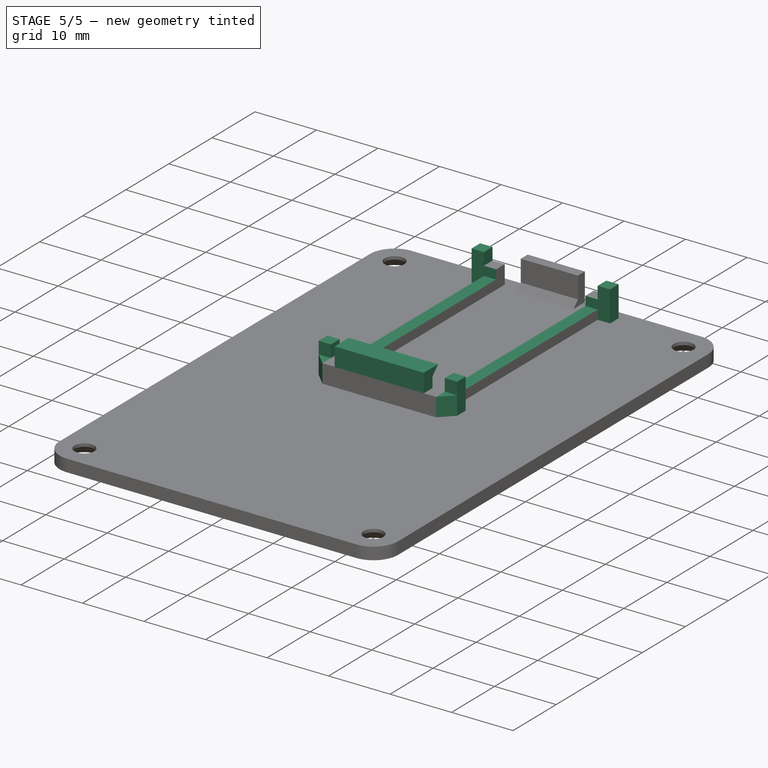
[diagram: stage 5 of 5 — iso view after this stage's code; geometry added in this stage tinted green]
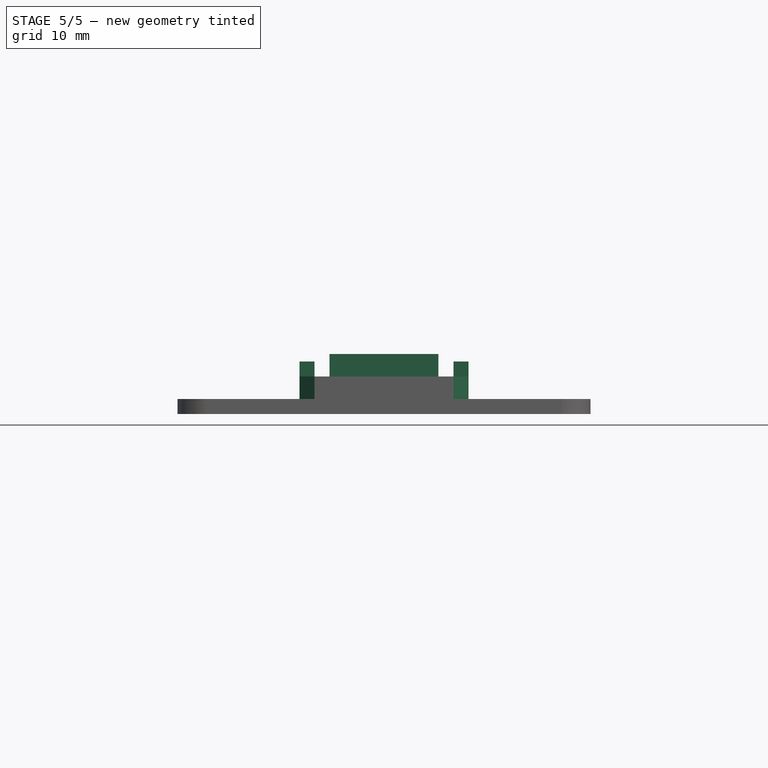
[diagram: stage 5 of 5 — front view after this stage's code; geometry added in this stage tinted green]
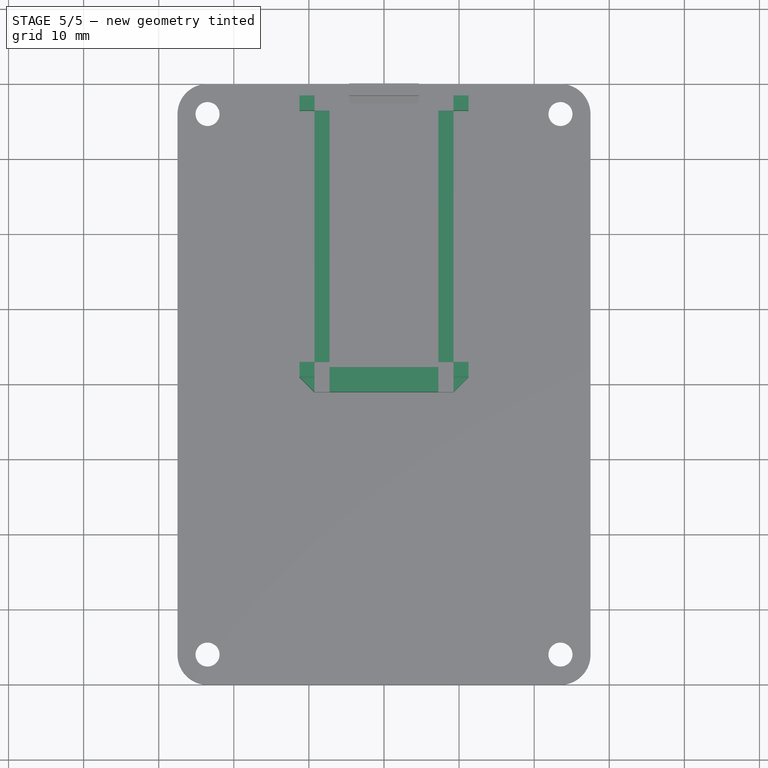
[diagram: stage 5 of 5 — top view after this stage's code; geometry added in this stage tinted green]
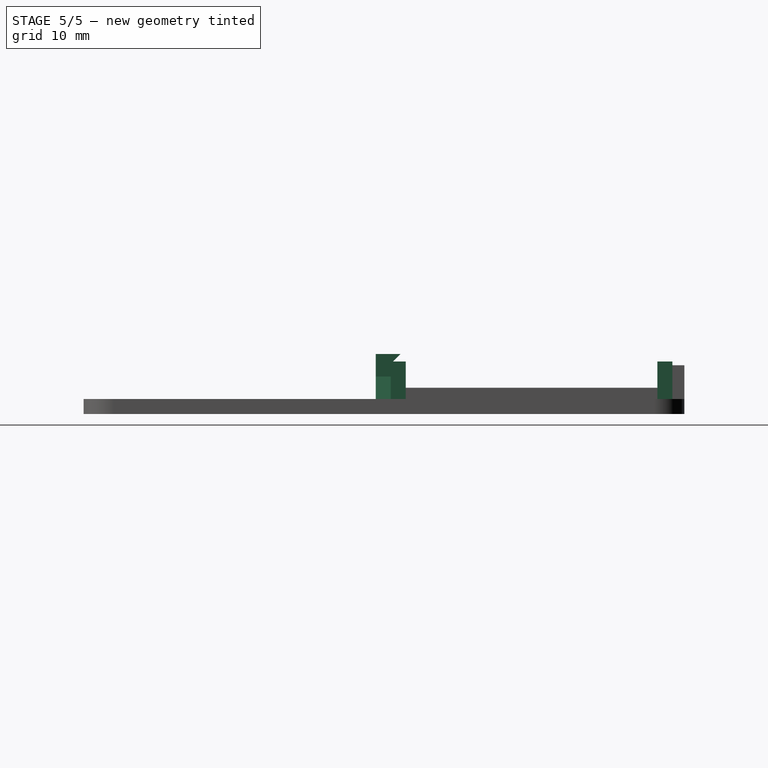
[diagram: stage 5 of 5 — right view after this stage's code; geometry added in this stage tinted green]
FEATURE [Sketcher::SketchObject] Sketch025
  ArcFitTolerance = 1e-06
  AttachmentSupport = -> [Chamfer008]
  ExternalGeometry = -> [Chamfer008]
  FullyConstrained = true
  MakeInternals = false
  MapMode = 5
  Placement = pos=(-7.25,0,0) rot=(0.57735,0.57735,0.57735;2.0944rad)
  sketch-geometry (5):
    g0: LineSegment StartX=-1.1 StartY=3 StartZ=0 EndX=0.9 EndY=3 EndZ=0
    g1: LineSegment StartX=2.2 StartY=6 StartZ=0 EndX=-1.1 EndY=6 EndZ=0
    g2: LineSegment StartX=-1.1 StartY=6 StartZ=0 EndX=-1.1 EndY=3 EndZ=0
    g3: LineSegment StartX=0.9 StartY=3 StartZ=0 EndX=0.9 EndY=4.7 EndZ=0
    g4: LineSegment StartX=0.9 StartY=4.7 StartZ=0 EndX=2.2 EndY=6 EndZ=0
  constraints (13):
    c: Coincident(g0,g-4)
    c: Coincident(g0,g-3)
    c: Horizontal(g1)
    c: Coincident(g2,g1)
    c: Coincident(g2,g0)
    c: Vertical(g2)
    c: Coincident(g3,g0)
    c: Vertical(g3)
    c: Coincident(g4,g3)
    c: Coincident(g4,g1)
    c: DistanceY(g3,g3) = 1.7
    c: Angle(g3,g4) = 2.35619
    c: DistanceY(g2,g2) = 3
FEATURE [PartDesign::Pad] Pad010
  BaseFeature = -> Chamfer008
  Direction = (1,0,0)
  Length = 10
  Length2 = 10
  Profile = -> Sketch025
  ReferenceAxis = -> Sketch025 [N_Axis]
  Refine = true
  Suppressed = false
  Type = 3
  UpToFace = -> Chamfer008 [Face23]
FEATURE [Sketcher::SketchObject] Sketch026
  ArcFitTolerance = 1e-06
  AttachmentSupport = -> [Pad010]
  ExternalGeometry = -> [Pad010]
  FullyConstrained = true
  MakeInternals = false
  MapMode = 5
  Placement = pos=(0,0,3) rot=(0,0,1;0rad)
  sketch-geometry (16):
    g0: LineSegment StartX=9.25 StartY=38.4 StartZ=0 EndX=9.25 EndY=36.4 EndZ=0
    g1: LineSegment StartX=9.25 StartY=36.4 StartZ=0 EndX=11.25 EndY=36.4 EndZ=0
    g2: LineSegment StartX=11.25 StartY=36.4 StartZ=0 EndX=11.25 EndY=38.4 EndZ=0
    g3: LineSegment StartX=11.25 StartY=38.4 StartZ=0 EndX=9.25 EndY=38.4 EndZ=0
    g4: LineSegment StartX=-11.25 StartY=2.9 StartZ=0 EndX=-11.25 EndY=0.9 EndZ=0
    g5: LineSegment StartX=-11.25 StartY=0.9 StartZ=0 EndX=-9.25 EndY=0.9 EndZ=0
    g6: LineSegment StartX=-9.25 StartY=0.9 StartZ=0 EndX=-9.25 EndY=2.9 EndZ=0
    g7: LineSegment StartX=-9.25 StartY=2.9 StartZ=0 EndX=-11.25 EndY=2.9 EndZ=0
    g8: LineSegment StartX=-9.25 StartY=38.4 StartZ=0 EndX=-11.25 EndY=38.4 EndZ=0
    g9: LineSegment StartX=-11.25 StartY=38.4 StartZ=0 EndX=-11.25 EndY=36.4 EndZ=0
    g10: LineSegment StartX=-11.25 StartY=36.4 StartZ=0 EndX=-9.25 EndY=36.4 EndZ=0
    g11: LineSegment StartX=-9.25 StartY=36.4 StartZ=0 EndX=-9.25 EndY=38.4 EndZ=0
    g12: LineSegment StartX=9.25 StartY=2.9 StartZ=0 EndX=9.25 EndY=0.9 EndZ=0
    g13: LineSegment StartX=9.25 StartY=0.9 StartZ=0 EndX=11.25 EndY=0.9 EndZ=0
    g14: LineSegment StartX=11.25 StartY=0.9 StartZ=0 EndX=11.25 EndY=2.9 EndZ=0
    g15: LineSegment StartX=11.25 StartY=2.9 StartZ=0 EndX=9.25 EndY=2.9 EndZ=0
  constraints (46):
    c: Coincident(g0,g1)
    c: Coincident(g1,g2)
    c: Coincident(g2,g3)
    c: Coincident(g3,g0)
    c: Vertical(g0)
    c: Vertical(g2)
    c: Horizontal(g1)
    c: Horizontal(g3)
    c: Coincident(g0,g-4)
    c: Coincident(g4,g5)
    c: Coincident(g5,g6)
    c: Coincident(g6,g7)
    c: Coincident(g7,g4)
    c: Vertical(g4)
    c: Vertical(g6)
    c: Horizontal(g5)
    c: Horizontal(g7)
    c: Coincident(g8,g9)
    c: Coincident(g9,g10)
    c: Coincident(g10,g11)
    c: Coincident(g11,g8)
    c: Horizontal(g8)
    c: Horizontal(g10)
    c: Vertical(g9)
    c: Vertical(g11)
    c: Coincident(g8,g-3)
    c: Equal(g8,g9)
    c: DistanceX(g8,g8) = 2
    c: Equal(g3,g2)
    c: Equal(g3,g8)
    c: Equal(g7,g4)
    c: Equal(g7,g10)
    c: PointOnObject(g6,g-3)
    c: Horizontal(g5,g-5)
    c: Coincident(g12,g13)
    c: Coincident(g13,g14)
    c: Coincident(g14,g15)
    c: Coincident(g15,g12)
    c: Vertical(g12)
    c: Vertical(g14)
    c: Horizontal(g13)
    c: Horizontal(g15)
    c: PointOnObject(g12,g-4)
    c: Equal(g15,g14)
    c: Equal(g14,g7)
    c: Horizontal(g12,g-6)
FEATURE [PartDesign::Pad] Pad011
  BaseFeature = -> Pad010
  Direction = (0,0,1)
  Length = 4
  Length2 = 10
  Profile = -> Sketch026
  ReferenceAxis = -> Sketch026 [N_Axis]
  Refine = true
  Reversed = true
  Suppressed = false
  Type = 0
FEATURE [Sketcher::SketchObject] Sketch027
  ArcFitTolerance = 1e-06
  AttachmentSupport = -> [Pad011]
  ExternalGeometry = -> [Pad011]
  FullyConstrained = true
  MakeInternals = false
  MapMode = 5
  Placement = pos=(0,0,3) rot=(0,0,1;0rad)
  sketch-geometry (16):
    g0: LineSegment StartX=-11.25 StartY=38.4 StartZ=0 EndX=-11.25 EndY=36.4 EndZ=0
    g1: LineSegment StartX=-11.25 StartY=36.4 StartZ=0 EndX=-9.25 EndY=36.4 EndZ=0
    g2: LineSegment StartX=-9.25 StartY=36.4 StartZ=0 EndX=-9.25 EndY=38.4 EndZ=0
    g3: LineSegment StartX=-9.25 StartY=38.4 StartZ=0 EndX=-11.25 EndY=38.4 EndZ=0
    g4: LineSegment StartX=11.25 StartY=38.4 StartZ=0 EndX=9.25 EndY=38.4 EndZ=0
    g5: LineSegment StartX=9.25 StartY=38.4 StartZ=0 EndX=9.25 EndY=36.4 EndZ=0
    g6: LineSegment StartX=9.25 StartY=36.4 StartZ=0 EndX=11.25 EndY=36.4 EndZ=0
    g7: LineSegment StartX=11.25 StartY=36.4 StartZ=0 EndX=11.25 EndY=38.4 EndZ=0
    g8: LineSegment StartX=-11.25 StartY=2.9 StartZ=0 EndX=-11.25 EndY=0.9 EndZ=0
    g9: LineSegment StartX=-11.25 StartY=0.9 StartZ=0 EndX=-9.25 EndY=0.9 EndZ=0
    g10: LineSegment StartX=-9.25 StartY=0.9 StartZ=0 EndX=-9.25 EndY=2.9 EndZ=0
    g11: LineSegment StartX=-9.25 StartY=2.9 StartZ=0 EndX=-11.25 EndY=2.9 EndZ=0
    g12: LineSegment StartX=11.25 StartY=2.9 StartZ=0 EndX=9.25 EndY=2.9 EndZ=0
    g13: LineSegment StartX=9.25 StartY=2.9 StartZ=0 EndX=9.25 EndY=0.9 EndZ=0
    g14: LineSegment StartX=9.25 StartY=0.9 StartZ=0 EndX=11.25 EndY=0.9 EndZ=0
    g15: LineSegment StartX=11.25 StartY=0.9 StartZ=0 EndX=11.25 EndY=2.9 EndZ=0
  constraints (40):
    c: Coincident(g0,g1)
    c: Coincident(g1,g2)
    c: Coincident(g2,g3)
    c: Coincident(g3,g0)
    c: Vertical(g0)
    c: Vertical(g2)
    c: Horizontal(g1)
    c: Horizontal(g3)
    c: Coincident(g0,g-4)
    c: Coincident(g1,g-3)
    c: Coincident(g4,g5)
    c: Coincident(g5,g6)
    c: Coincident(g6,g7)
    c: Coincident(g7,g4)
    c: Horizontal(g4)
    c: Horizontal(g6)
    c: Vertical(g5)
    c: Vertical(g7)
    c: Coincident(g4,g-8)
    c: Coincident(g5,g-7)
    c: Coincident(g8,g9)
    c: Coincident(g9,g10)
    c: Coincident(g10,g11)
    c: Coincident(g11,g8)
    c: Vertical(g8)
    c: Vertical(g10)
    c: Horizontal(g9)
    c: Horizontal(g11)
    c: Coincident(g8,g-5)
    c: Coincident(g9,g-6)
    c: Coincident(g12,g13)
    c: Coincident(g13,g14)
    c: Coincident(g14,g15)
    c: Coincident(g15,g12)
    c: Horizontal(g12)
    c: Horizontal(g14)
    c: Vertical(g13)
    c: Vertical(g15)
    c: Coincident(g12,g-10)
    c: Coincident(g13,g-9)
FEATURE [PartDesign::Pad] Pad012
  BaseFeature = -> Pad011
  Direction = (0,0,1)
  Length = 2
  Length2 = 10
  Profile = -> Sketch027
  ReferenceAxis = -> Sketch027 [N_Axis]
  Suppressed = false
  Type = 0
FEATURE [Sketcher::SketchObject] Sketch028
  ArcFitTolerance = 1e-06
  AttachmentSupport = -> [Pad012]
  ExternalGeometry = -> [Pad012]
  FullyConstrained = true
  MakeInternals = false
  MapMode = 5
  Placement = pos=(0,0,3) rot=(0,0,1;0rad)
  sketch-geometry (4):
    g0: LineSegment StartX=9.25 StartY=2.9 StartZ=0 EndX=9.25 EndY=36.4 EndZ=0
    g1: LineSegment StartX=9.25 StartY=36.4 StartZ=0 EndX=-9.25 EndY=36.4 EndZ=0
    g2: LineSegment StartX=-9.25 StartY=36.4 StartZ=0 EndX=-9.25 EndY=2.9 EndZ=0
    g3: LineSegment StartX=-9.25 StartY=2.9 StartZ=0 EndX=9.25 EndY=2.9 EndZ=0
  constraints (10):
    c: Coincident(g0,g1)
    c: Coincident(g1,g2)
    c: Coincident(g2,g3)
    c: Coincident(g3,g0)
    c: Vertical(g0)
    c: Vertical(g2)
    c: Horizontal(g1)
    c: Horizontal(g3)
    c: Coincident(g1,g-4)
    c: Coincident(g0,g-3)
FEATURE [PartDesign::Pocket] Pocket015
  BaseFeature = -> Pad012
  Direction = (0,0,-1)
  Length = 1.5
  Length2 = 5
  Profile = -> Sketch028
  ReferenceAxis = -> Sketch028 [N_Axis]
  Suppressed = false
  Type = 0
FEATURE [Sketcher::SketchObject] Sketch029
  ArcFitTolerance = 1e-06
  AttachmentSupport = -> [Pocket015]
  ExternalGeometry = -> [Pocket015]
  FullyConstrained = true
  MakeInternals = false
  MapMode = 5
  sketch-geometry (4):
    g0: LineSegment StartX=-11.25 StartY=0.9 StartZ=0 EndX=11.25 EndY=0.9 EndZ=0
    g1: LineSegment StartX=11.25 StartY=0.9 StartZ=0 EndX=9.25 EndY=-1.1 EndZ=0
    g2: LineSegment StartX=9.25 StartY=-1.1 StartZ=0 EndX=-9.25 EndY=-1.1 EndZ=0
    g3: LineSegment StartX=-9.25 StartY=-1.1 StartZ=0 EndX=-11.25 EndY=0.9 EndZ=0
  constraints (8):
    c: Coincident(g-5,g0)
    c: Coincident(g0,g-6)
    c: Coincident(g0,g1)
    c: Coincident(g1,g2)
    c: Coincident(g2,g-8)
    c: Coincident(g2,g3)
    c: Coincident(g3,g0)
    c: Coincident(g1,g-7)
FEATURE [PartDesign::Pad] Pad013
  BaseFeature = -> Pocket015
  Direction = (0,0,1)
  Length = 10
  Length2 = 10
  Profile = -> Sketch029
  ReferenceAxis = -> Sketch029 [N_Axis]
  Suppressed = false
  Type = 3
  UpToFace = -> Pocket015 [Face53]
FEATURE [PartDesign::Body] Body001  label="víčko"
  AllowCompound = false
  Group = -> [Binder,Sketch004,Pad002,Sketch006,Pad003,Sketch009,Pad005,Sketch012,Pad007,Sketch024,Pocket014,Chamfer007,Chamfer008,Sketch025,Pad010,Sketch026,Pad011,Sketch027,Pad012,Sketch028,Pocket015,Sketch029,Pad013]
  Origin = -> Origin001
  Tip = -> Pad013
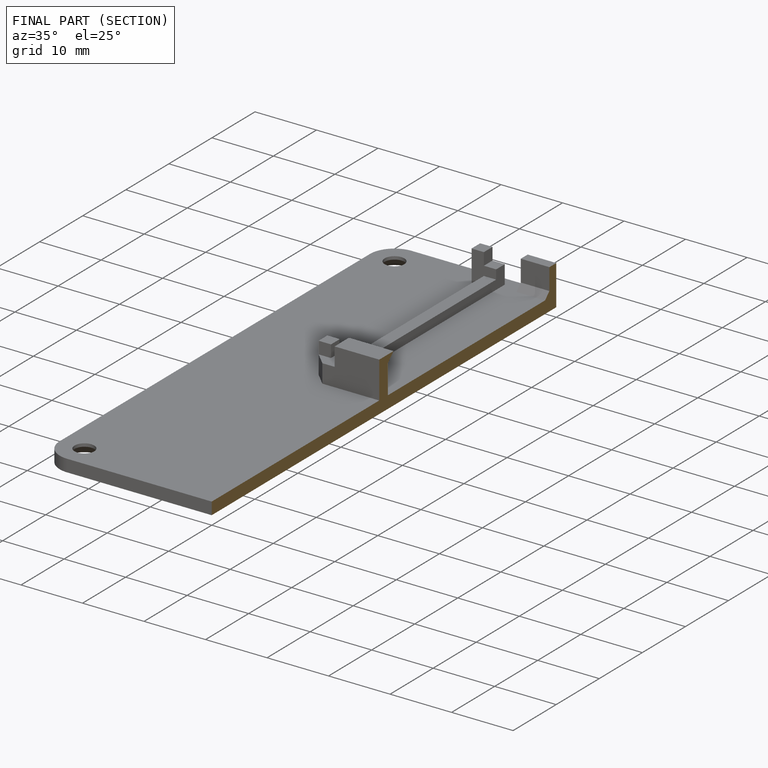
[diagram: finished part — half-section view (interior)]
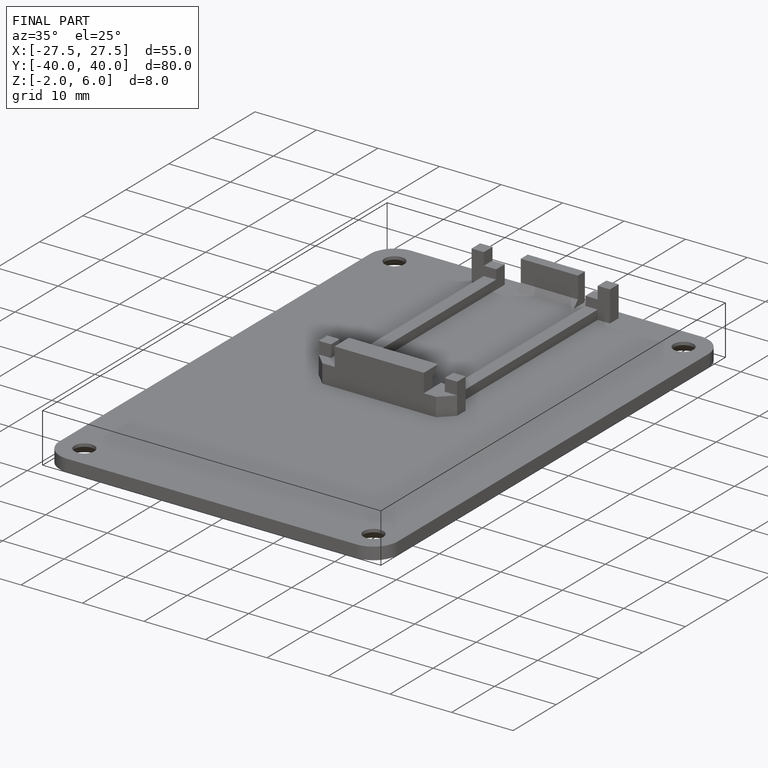
[diagram: finished part — iso view with bounding-box wireframe]
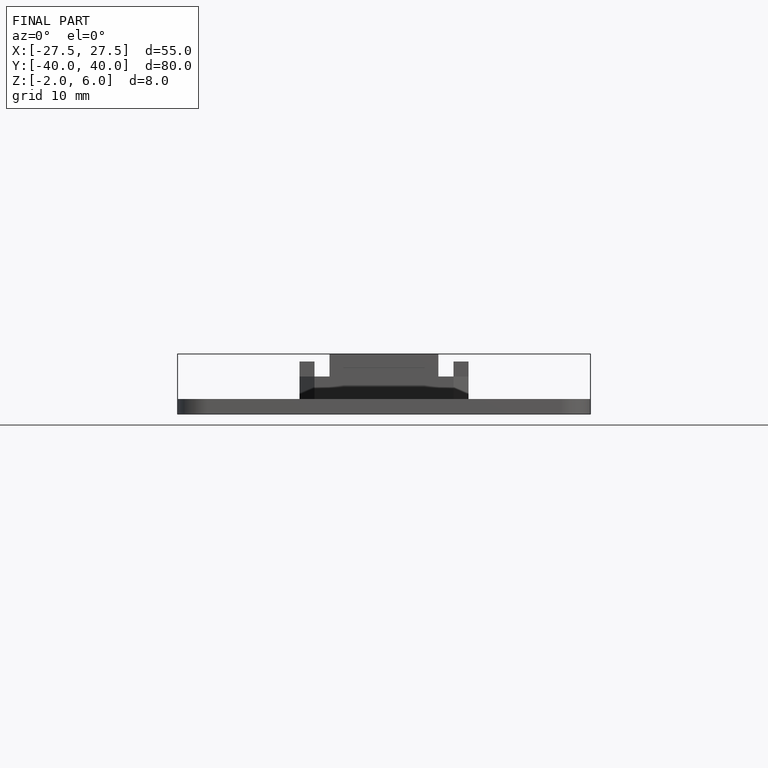
[diagram: finished part — front view with bounding-box wireframe]
